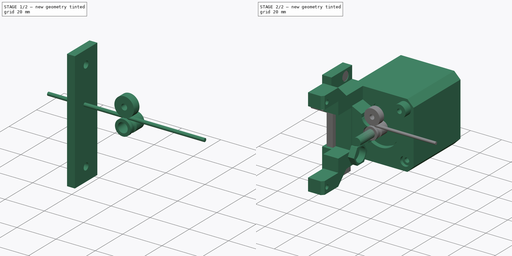
[diagram: build sequence overview — one tinted view per stage of 2, left to right]
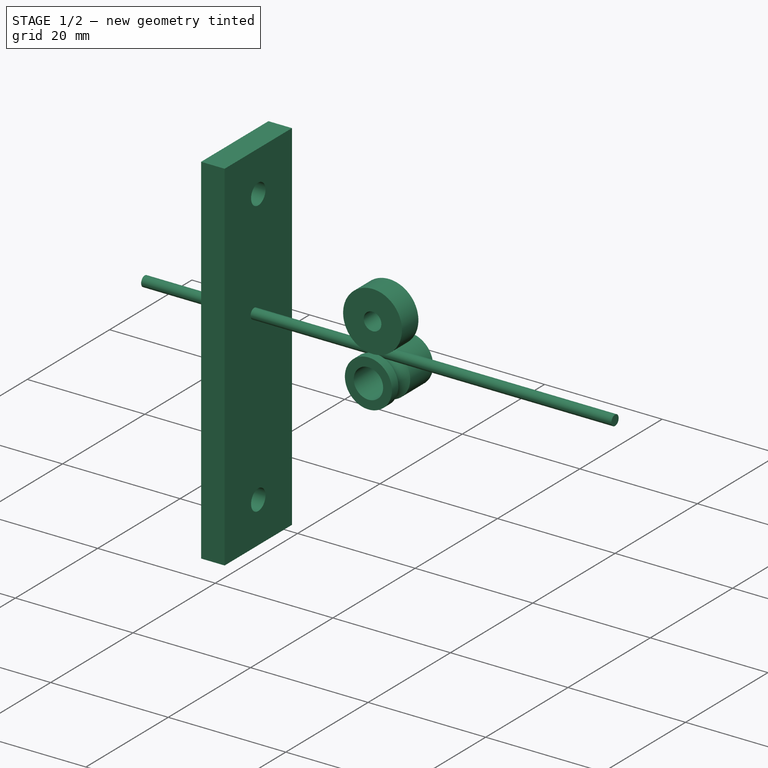
[diagram: stage 1 of 2 — iso view after this stage's code; geometry added in this stage tinted green]
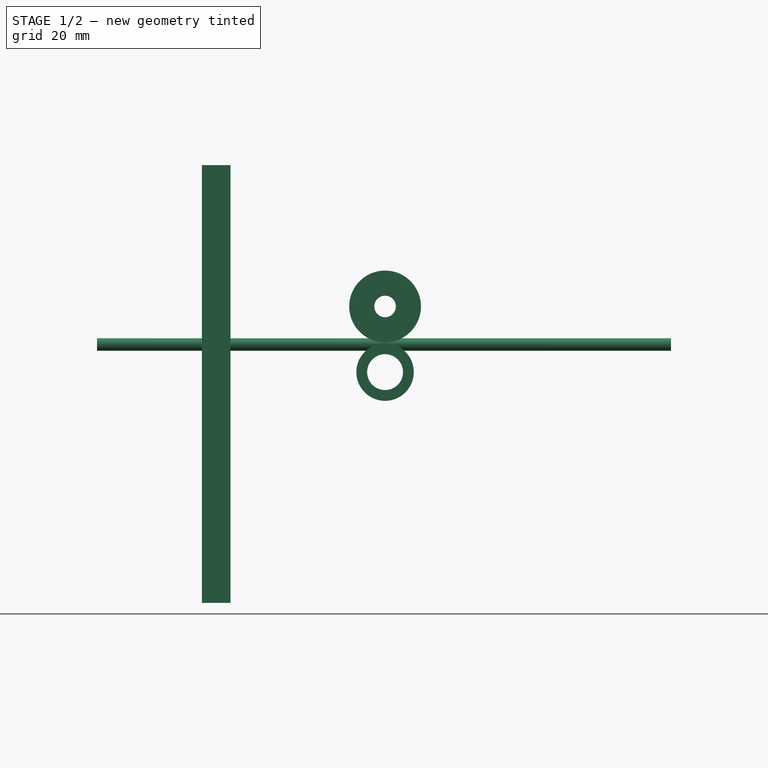
[diagram: stage 1 of 2 — front view after this stage's code; geometry added in this stage tinted green]
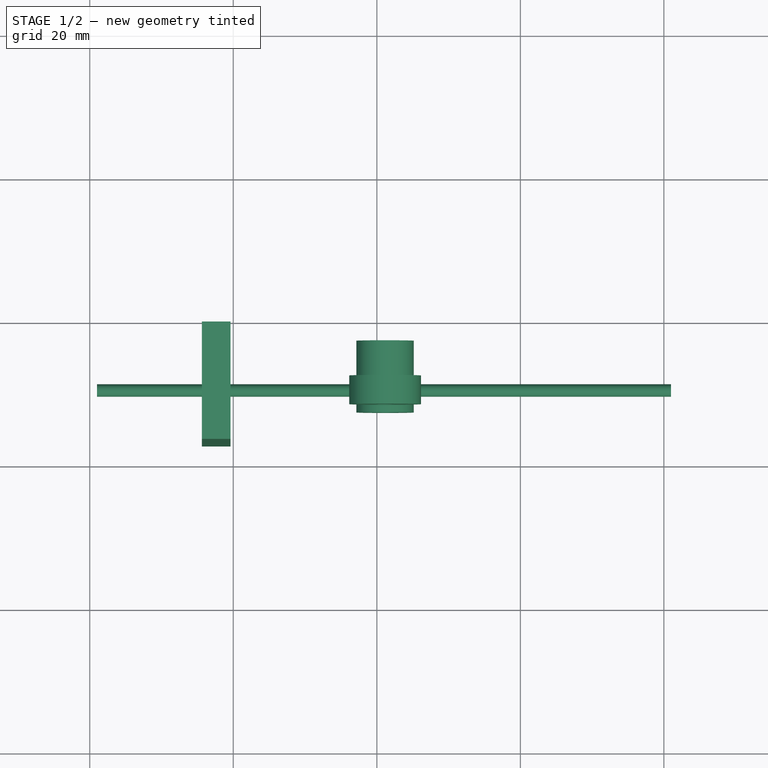
[diagram: stage 1 of 2 — top view after this stage's code; geometry added in this stage tinted green]
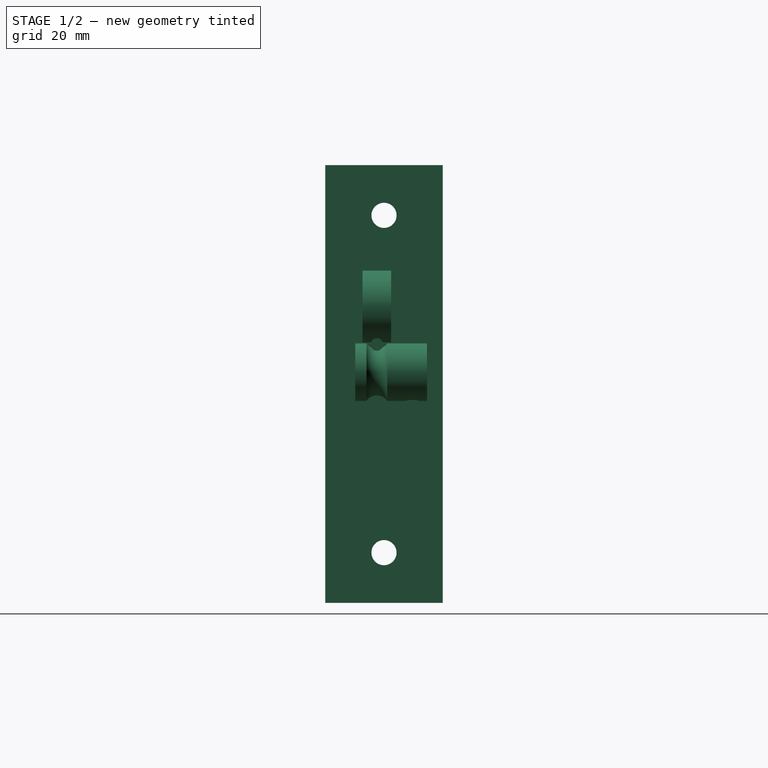
[diagram: stage 1 of 2 — right view after this stage's code; geometry added in this stage tinted green]
FCSTD DOCUMENT  (FreeCAD 0.16R6692 (Git))
Label: mm9_extruderV2
License: All rights reserved
LicenseURL: http://en.wikipedia.org/wiki/All_rights_reserved
objects: Part::FeaturePython×2, Part::Feature×1, Sketcher::SketchObject×1, Part::Extrusion×1, Part::Compound×1
note: 6 computed .brp shape members not serialized (recipe doc carries the construction recipe); baked Part::Feature solids carry a one-line shape summary decoded from their .brp

FEATURE [Sketcher::SketchObject] Sketch
  ExternalGeometry = -> [Solid]
  Placement = pos=(-4.38461,-42,-45) rot=(0,1,0;1.5708rad)
  Support = -> Solid [Face1525]
  sketch-geometry (8):
    g0: LineSegment StartX=0.00521168 StartY=41.18 StartZ=0 EndX=61.0059 EndY=41.18 EndZ=0
    g1: LineSegment StartX=61.0059 StartY=41.18 StartZ=0 EndX=61.0059 EndY=24.82 EndZ=0
    g2: LineSegment StartX=61.0059 StartY=24.82 StartZ=0 EndX=0.00521168 EndY=24.82 EndZ=0
    g3: LineSegment StartX=0.00521168 StartY=24.82 StartZ=0 EndX=0.00521168 EndY=41.18 EndZ=0
    g4: Circle [constr] CenterX=7.00538 CenterY=33 CenterZ=0 NormalX=0 NormalY=0 NormalZ=1 Radius=2
    g5: Circle [constr] CenterX=54.0057 CenterY=33 CenterZ=0 NormalX=0 NormalY=0 NormalZ=1 Radius=2
    g6: Circle CenterX=7.00538 CenterY=33 CenterZ=0 NormalX=0 NormalY=0 NormalZ=1 Radius=1.75
    g7: Circle CenterX=54.0057 CenterY=33 CenterZ=0 NormalX=0 NormalY=0 NormalZ=1 Radius=1.75
  constraints (22):
    c: Coincident(g0,g1)
    c: Coincident(g1,g2)
    c: Coincident(g2,g3)
    c: Coincident(g3,g0)
    c: Horizontal(g0)
    c: Horizontal(g2)
    c: Vertical(g1)
    c: Vertical(g3)
    c: PointOnObject(g0,g-10)
    c: PointOnObject(g1,g-9)
    c: Distance(g-9,g1) = 0.22
    c: Distance(g0,g-10) = 0.22
    c: PointOnObject(g-5,g4)
    c: PointOnObject(g-4,g4)
    c: PointOnObject(g-3,g4)
    c: PointOnObject(g-8,g5)
    c: PointOnObject(g-6,g5)
    c: PointOnObject(g-7,g5)
    c: Coincident(g6,g4)
    c: Coincident(g7,g5)
    c: Radius(g7) = 1.75
    c: Equal(g7,g6)
FEATURE [Part::Extrusion] Extrude
  Base = -> Sketch
  Dir = (4,0,0)
  Solid = true
FEATURE [Part::Compound] Compound
  Placement = pos=(0,7,-95) rot=(0,0,1;0rad)
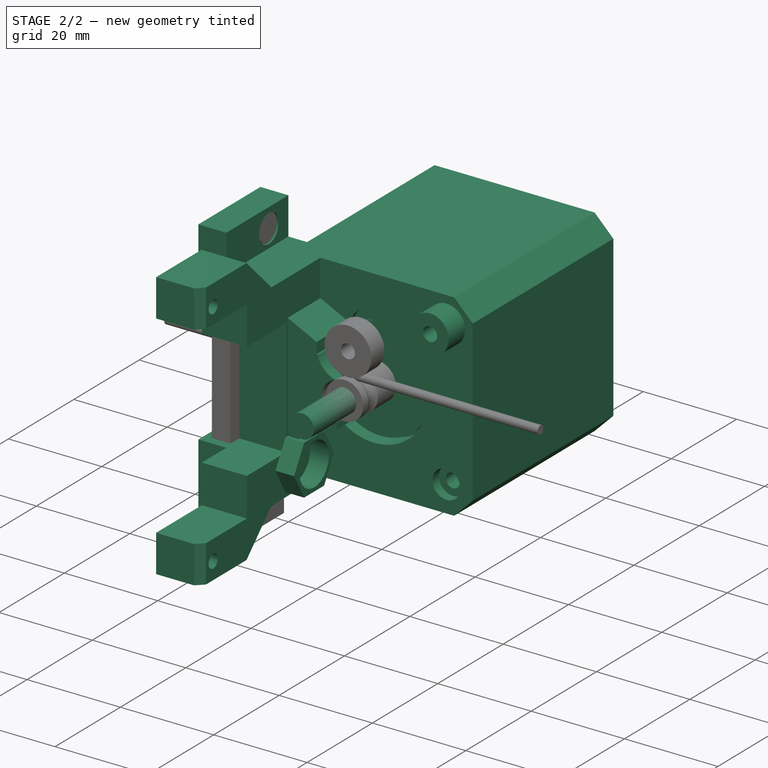
[diagram: stage 2 of 2 — iso view after this stage's code; geometry added in this stage tinted green]
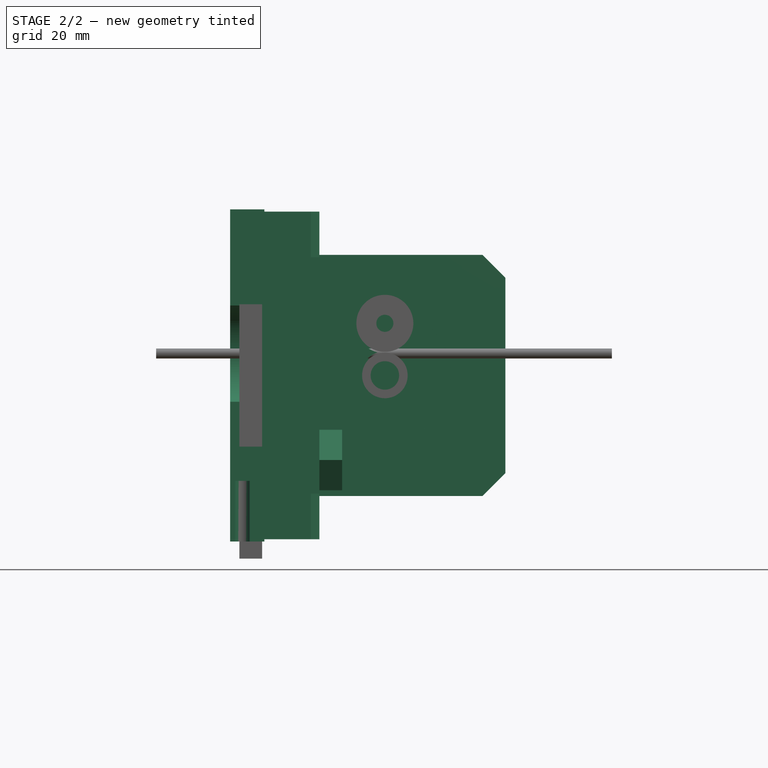
[diagram: stage 2 of 2 — front view after this stage's code; geometry added in this stage tinted green]
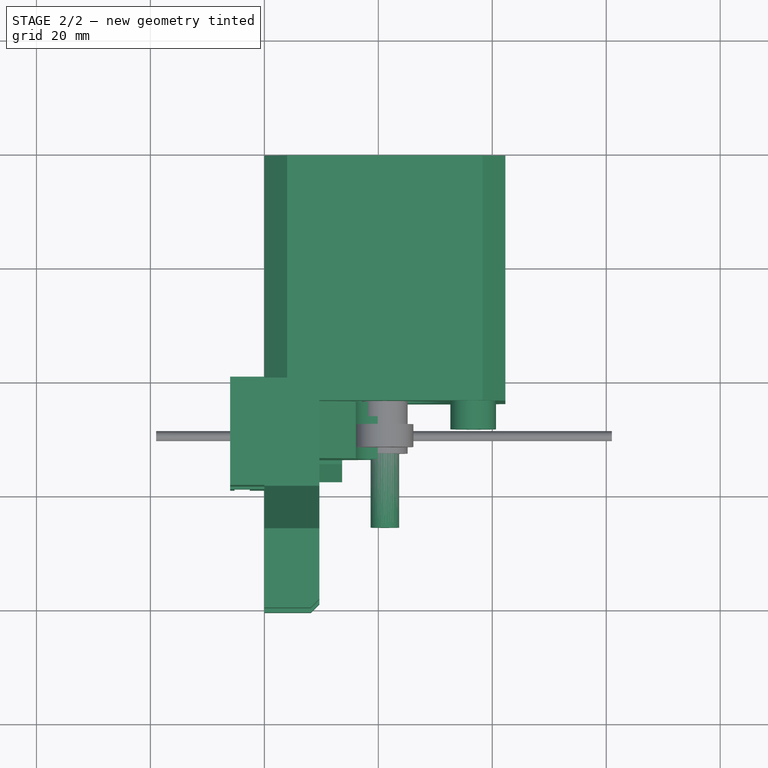
[diagram: stage 2 of 2 — top view after this stage's code; geometry added in this stage tinted green]
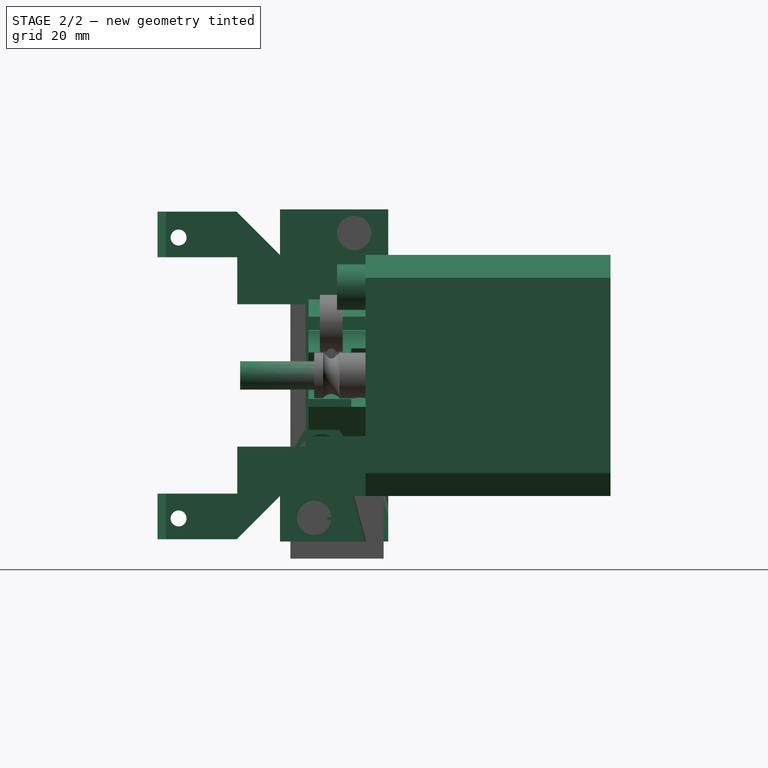
[diagram: stage 2 of 2 — right view after this stage's code; geometry added in this stage tinted green]
FEATURE [Part::Feature] Solid
  Placement = pos=(-253,-42,-45) rot=(0,1,0;1.5708rad)
  shape: bbox 25.46 x 81 x 61 mm, 2212 faces (baked)
FEATURE [Part::FeaturePython] Clone034025  label="Clone of NEMA018"  # WARN: FeaturePython — macro-defined, semantics opaque (R4)
  Placement = pos=(0,0,-95) rot=(0,0,1;0rad)
  Scale = (1,1,1)
FEATURE [Part::FeaturePython] Clone034022  label="Clone of Cut021"  # WARN: FeaturePython — macro-defined, semantics opaque (R4)
  Placement = pos=(0,0,-95) rot=(0,0,1;0rad)
  Scale = (1,1,1)
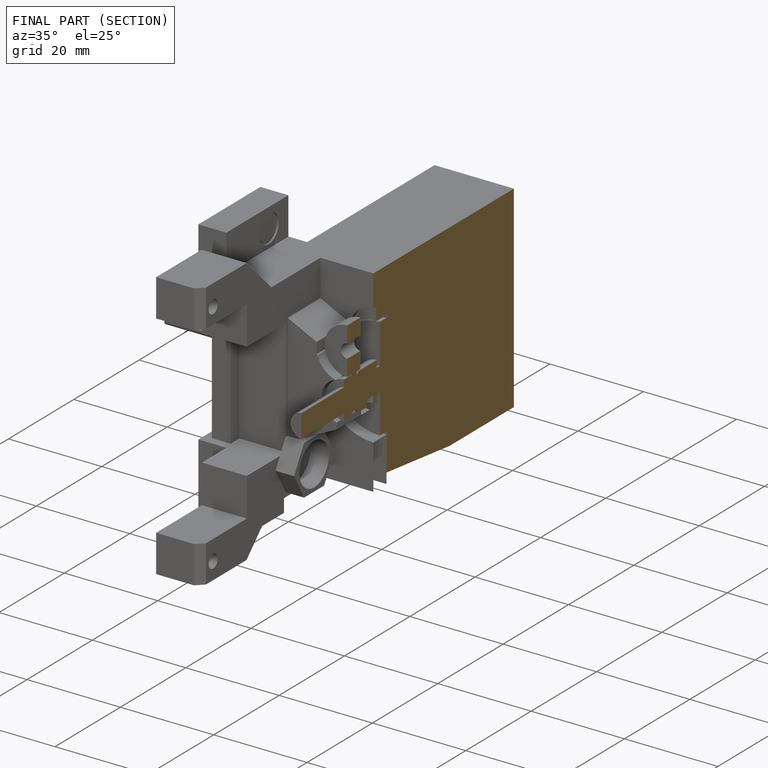
[diagram: finished part — half-section view (interior)]
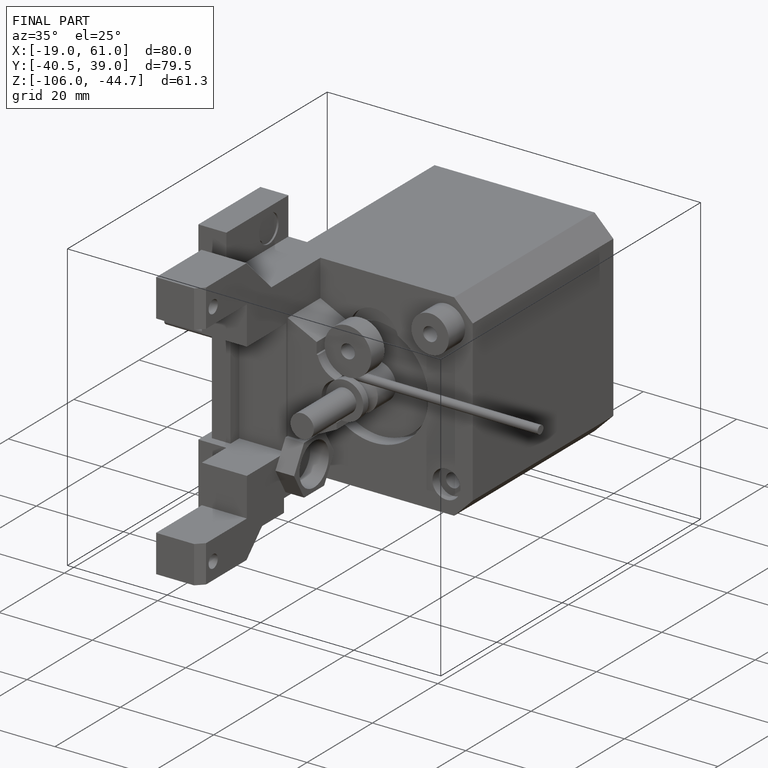
[diagram: finished part — iso view with bounding-box wireframe]
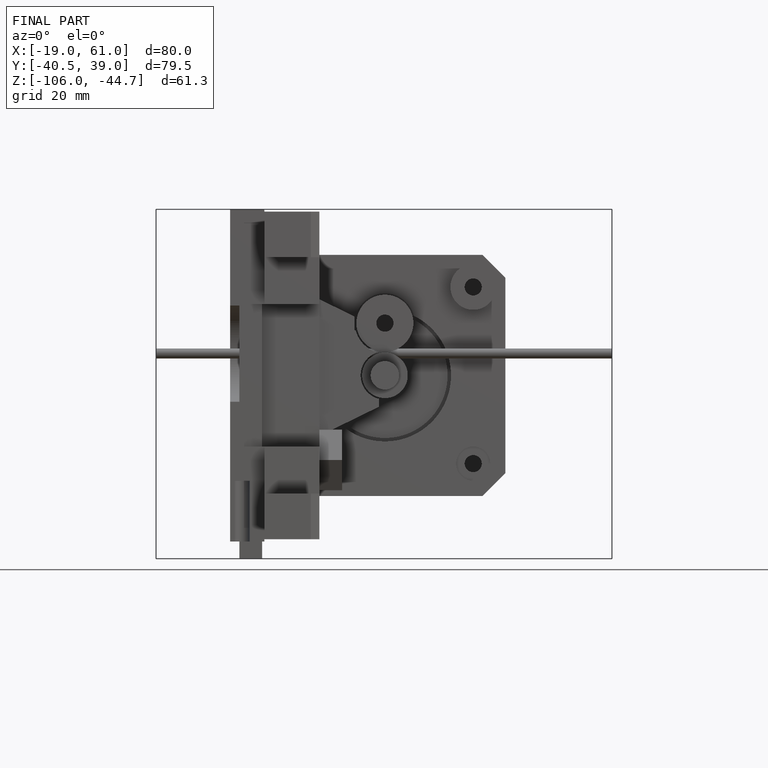
[diagram: finished part — front view with bounding-box wireframe]
